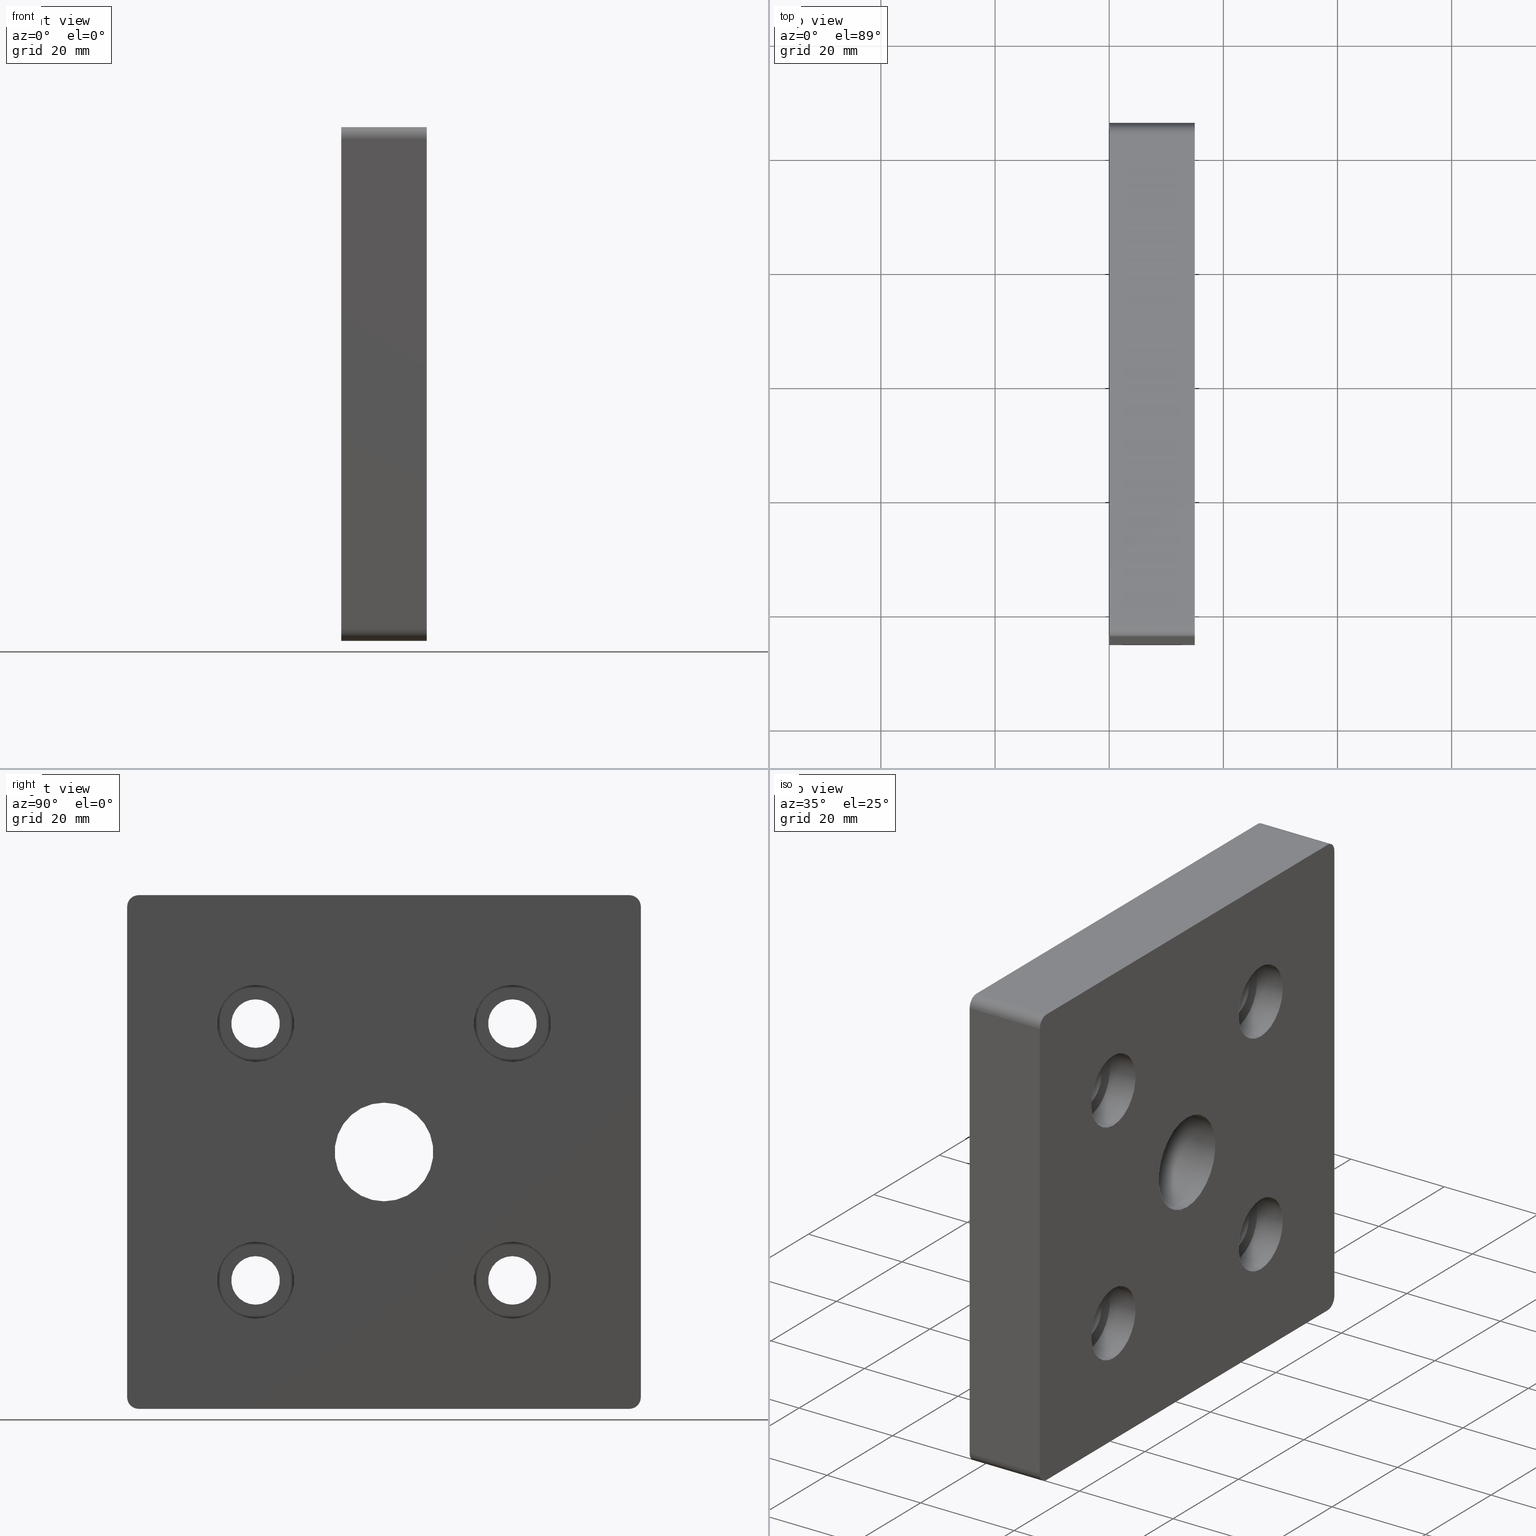
[diagram: canonical four-view strip — front | top / right | iso, engineering-drawing reading convention]
A machine part, canonical four-view strip (front | top / right | iso — engineering-drawing reading convention). The complete STEP part file that produces these views, byte-faithful:
ISO-10303-21;
HEADER;
/* Generated by software containing ST-Developer
 * from STEP Tools, Inc. (www.steptools.com) 
 */

FILE_DESCRIPTION(
/* description */ ('PIASTRA FISS. PIEDI M20 90X90'),
/* implementation_level */ '2;1');

FILE_NAME(
/* name */ 
'Q:\\Catalogo\\2_Accessori Dierre\\Per Download Web e catalogo cartace
o\\CATALOGO PIEDI E SOSTEGNI\\PAGINA 46\\DPSXX0000558.stp',
/* time_stamp */ '2018-11-05T17:31:01+01:00',
/* author */ ('fzagni'),
/* organization */ (''),
/* preprocessor_version */ 'ST-DEVELOPER v16.1',
/* originating_system */ 'Autodesk Inventor 2016',
/* authorisation */ '');

FILE_SCHEMA (('AUTOMOTIVE_DESIGN { 1 0 10303 214 3 1 1 }'));
ENDSEC;

DATA;
#10=MECHANICAL_DESIGN_GEOMETRIC_PRESENTATION_REPRESENTATION('',(#13),#641);
#11=SHAPE_REPRESENTATION_RELATIONSHIP('SRR','None',#650,#12);
#12=ADVANCED_BREP_SHAPE_REPRESENTATION('',(#14),#640);
#13=STYLED_ITEM('',(#659),#14);
#14=MANIFOLD_SOLID_BREP('Solido1',#371);
#15=FACE_BOUND('',#74,.T.);
#16=FACE_BOUND('',#75,.T.);
#17=FACE_BOUND('',#76,.T.);
#18=FACE_BOUND('',#77,.T.);
#19=FACE_BOUND('',#78,.T.);
#20=FACE_BOUND('',#85,.T.);
#21=FACE_BOUND('',#87,.T.);
#22=FACE_BOUND('',#89,.T.);
#23=FACE_BOUND('',#91,.T.);
#24=FACE_BOUND('',#93,.T.);
#25=FACE_BOUND('',#95,.T.);
#26=FACE_BOUND('',#97,.T.);
#27=FACE_BOUND('',#99,.T.);
#28=FACE_BOUND('',#101,.T.);
#29=FACE_BOUND('',#103,.T.);
#30=FACE_BOUND('',#105,.T.);
#31=FACE_BOUND('',#107,.T.);
#32=FACE_BOUND('',#109,.T.);
#33=FACE_BOUND('',#112,.T.);
#34=FACE_BOUND('',#113,.T.);
#35=FACE_BOUND('',#114,.T.);
#36=FACE_BOUND('',#115,.T.);
#37=FACE_BOUND('',#116,.T.);
#38=PLANE('',#376);
#39=PLANE('',#377);
#40=PLANE('',#388);
#41=PLANE('',#391);
#42=PLANE('',#396);
#43=PLANE('',#402);
#44=PLANE('',#408);
#45=PLANE('',#414);
#46=PLANE('',#420);
#47=PLANE('',#421);
#48=FACE_OUTER_BOUND('',#71,.T.);
#49=FACE_OUTER_BOUND('',#72,.T.);
#50=FACE_OUTER_BOUND('',#73,.T.);
#51=FACE_OUTER_BOUND('',#79,.T.);
#52=FACE_OUTER_BOUND('',#80,.T.);
#53=FACE_OUTER_BOUND('',#81,.T.);
#54=FACE_OUTER_BOUND('',#82,.T.);
#55=FACE_OUTER_BOUND('',#83,.T.);
#56=FACE_OUTER_BOUND('',#84,.T.);
#57=FACE_OUTER_BOUND('',#86,.T.);
#58=FACE_OUTER_BOUND('',#88,.T.);
#59=FACE_OUTER_BOUND('',#90,.T.);
#60=FACE_OUTER_BOUND('',#92,.T.);
#61=FACE_OUTER_BOUND('',#94,.T.);
#62=FACE_OUTER_BOUND('',#96,.T.);
#63=FACE_OUTER_BOUND('',#98,.T.);
#64=FACE_OUTER_BOUND('',#100,.T.);
#65=FACE_OUTER_BOUND('',#102,.T.);
#66=FACE_OUTER_BOUND('',#104,.T.);
#67=FACE_OUTER_BOUND('',#106,.T.);
#68=FACE_OUTER_BOUND('',#108,.T.);
#69=FACE_OUTER_BOUND('',#110,.T.);
#70=FACE_OUTER_BOUND('',#111,.T.);
#71=EDGE_LOOP('',(#251,#252,#253,#254));
#72=EDGE_LOOP('',(#255,#256,#257,#258));
#73=EDGE_LOOP('',(#259,#260,#261,#262,#263,#264,#265,#266));
#74=EDGE_LOOP('',(#267));
#75=EDGE_LOOP('',(#268));
#76=EDGE_LOOP('',(#269));
#77=EDGE_LOOP('',(#270));
#78=EDGE_LOOP('',(#271));
#79=EDGE_LOOP('',(#272,#273,#274,#275));
#80=EDGE_LOOP('',(#276,#277,#278,#279));
#81=EDGE_LOOP('',(#280,#281,#282,#283));
#82=EDGE_LOOP('',(#284,#285,#286,#287));
#83=EDGE_LOOP('',(#288,#289,#290,#291));
#84=EDGE_LOOP('',(#292));
#85=EDGE_LOOP('',(#293));
#86=EDGE_LOOP('',(#294));
#87=EDGE_LOOP('',(#295));
#88=EDGE_LOOP('',(#296));
#89=EDGE_LOOP('',(#297));
#90=EDGE_LOOP('',(#298));
#91=EDGE_LOOP('',(#299));
#92=EDGE_LOOP('',(#300));
#93=EDGE_LOOP('',(#301));
#94=EDGE_LOOP('',(#302));
#95=EDGE_LOOP('',(#303));
#96=EDGE_LOOP('',(#304));
#97=EDGE_LOOP('',(#305));
#98=EDGE_LOOP('',(#306));
#99=EDGE_LOOP('',(#307));
#100=EDGE_LOOP('',(#308));
#101=EDGE_LOOP('',(#309));
#102=EDGE_LOOP('',(#310));
#103=EDGE_LOOP('',(#311));
#104=EDGE_LOOP('',(#312));
#105=EDGE_LOOP('',(#313));
#106=EDGE_LOOP('',(#314));
#107=EDGE_LOOP('',(#315));
#108=EDGE_LOOP('',(#316));
#109=EDGE_LOOP('',(#317));
#110=EDGE_LOOP('',(#318,#319,#320,#321));
#111=EDGE_LOOP('',(#322,#323,#324,#325,#326,#327,#328,#329));
#112=EDGE_LOOP('',(#330));
#113=EDGE_LOOP('',(#331));
#114=EDGE_LOOP('',(#332));
#115=EDGE_LOOP('',(#333));
#116=EDGE_LOOP('',(#334));
#117=LINE('',#544,#133);
#118=LINE('',#547,#134);
#119=LINE('',#550,#135);
#120=LINE('',#552,#136);
#121=LINE('',#553,#137);
#122=LINE('',#556,#138);
#123=LINE('',#560,#139);
#124=LINE('',#564,#140);
#125=LINE('',#579,#141);
#126=LINE('',#582,#142);
#127=LINE('',#583,#143);
#128=LINE('',#587,#144);
#129=LINE('',#590,#145);
#130=LINE('',#591,#146);
#131=LINE('',#595,#147);
#132=LINE('',#636,#148);
#133=VECTOR('',#428,15.);
#134=VECTOR('',#431,15.);
#135=VECTOR('',#434,86.);
#136=VECTOR('',#435,15.);
#137=VECTOR('',#436,86.);
#138=VECTOR('',#439,86.);
#139=VECTOR('',#442,86.);
#140=VECTOR('',#445,86.);
#141=VECTOR('',#462,15.);
#142=VECTOR('',#465,15.);
#143=VECTOR('',#466,86.);
#144=VECTOR('',#471,15.);
#145=VECTOR('',#474,15.);
#146=VECTOR('',#475,86.);
#147=VECTOR('',#480,15.);
#148=VECTOR('',#535,86.);
#149=CIRCLE('',#374,2.);
#150=CIRCLE('',#375,2.);
#151=CIRCLE('',#378,2.);
#152=CIRCLE('',#379,2.);
#153=CIRCLE('',#380,2.);
#154=CIRCLE('',#381,8.647);
#155=CIRCLE('',#382,4.25);
#156=CIRCLE('',#383,4.25);
#157=CIRCLE('',#384,4.25);
#158=CIRCLE('',#385,4.25);
#159=CIRCLE('',#387,2.);
#160=CIRCLE('',#390,2.);
#161=CIRCLE('',#393,2.);
#162=CIRCLE('',#395,8.647);
#163=CIRCLE('',#397,6.75);
#164=CIRCLE('',#398,4.25);
#165=CIRCLE('',#400,6.75);
#166=CIRCLE('',#403,6.75);
#167=CIRCLE('',#404,4.25);
#168=CIRCLE('',#406,6.75);
#169=CIRCLE('',#409,6.75);
#170=CIRCLE('',#410,4.25);
#171=CIRCLE('',#412,6.75);
#172=CIRCLE('',#415,6.75);
#173=CIRCLE('',#416,4.25);
#174=CIRCLE('',#418,6.75);
#175=VERTEX_POINT('',#540);
#176=VERTEX_POINT('',#541);
#177=VERTEX_POINT('',#543);
#178=VERTEX_POINT('',#545);
#179=VERTEX_POINT('',#549);
#180=VERTEX_POINT('',#551);
#181=VERTEX_POINT('',#555);
#182=VERTEX_POINT('',#557);
#183=VERTEX_POINT('',#559);
#184=VERTEX_POINT('',#561);
#185=VERTEX_POINT('',#563);
#186=VERTEX_POINT('',#566);
#187=VERTEX_POINT('',#568);
#188=VERTEX_POINT('',#570);
#189=VERTEX_POINT('',#572);
#190=VERTEX_POINT('',#574);
#191=VERTEX_POINT('',#577);
#192=VERTEX_POINT('',#581);
#193=VERTEX_POINT('',#585);
#194=VERTEX_POINT('',#589);
#195=VERTEX_POINT('',#593);
#196=VERTEX_POINT('',#597);
#197=VERTEX_POINT('',#600);
#198=VERTEX_POINT('',#602);
#199=VERTEX_POINT('',#605);
#200=VERTEX_POINT('',#609);
#201=VERTEX_POINT('',#611);
#202=VERTEX_POINT('',#614);
#203=VERTEX_POINT('',#618);
#204=VERTEX_POINT('',#620);
#205=VERTEX_POINT('',#623);
#206=VERTEX_POINT('',#627);
#207=VERTEX_POINT('',#629);
#208=VERTEX_POINT('',#632);
#209=EDGE_CURVE('',#175,#176,#149,.T.);
#210=EDGE_CURVE('',#176,#177,#117,.T.);
#211=EDGE_CURVE('',#177,#178,#150,.T.);
#212=EDGE_CURVE('',#178,#175,#118,.T.);
#213=EDGE_CURVE('',#178,#179,#119,.T.);
#214=EDGE_CURVE('',#180,#179,#120,.T.);
#215=EDGE_CURVE('',#175,#180,#121,.T.);
#216=EDGE_CURVE('',#181,#177,#122,.T.);
#217=EDGE_CURVE('',#182,#181,#151,.T.);
#218=EDGE_CURVE('',#183,#182,#123,.T.);
#219=EDGE_CURVE('',#184,#183,#152,.T.);
#220=EDGE_CURVE('',#185,#184,#124,.T.);
#221=EDGE_CURVE('',#179,#185,#153,.T.);
#222=EDGE_CURVE('',#186,#186,#154,.T.);
#223=EDGE_CURVE('',#187,#187,#155,.T.);
#224=EDGE_CURVE('',#188,#188,#156,.T.);
#225=EDGE_CURVE('',#189,#189,#157,.T.);
#226=EDGE_CURVE('',#190,#190,#158,.T.);
#227=EDGE_CURVE('',#191,#180,#159,.T.);
#228=EDGE_CURVE('',#185,#191,#125,.T.);
#229=EDGE_CURVE('',#192,#184,#126,.T.);
#230=EDGE_CURVE('',#191,#192,#127,.T.);
#231=EDGE_CURVE('',#193,#192,#160,.T.);
#232=EDGE_CURVE('',#183,#193,#128,.T.);
#233=EDGE_CURVE('',#194,#182,#129,.T.);
#234=EDGE_CURVE('',#193,#194,#130,.T.);
#235=EDGE_CURVE('',#195,#194,#161,.T.);
#236=EDGE_CURVE('',#181,#195,#131,.T.);
#237=EDGE_CURVE('',#196,#196,#162,.T.);
#238=EDGE_CURVE('',#197,#197,#163,.T.);
#239=EDGE_CURVE('',#198,#198,#164,.T.);
#240=EDGE_CURVE('',#199,#199,#165,.T.);
#241=EDGE_CURVE('',#200,#200,#166,.T.);
#242=EDGE_CURVE('',#201,#201,#167,.T.);
#243=EDGE_CURVE('',#202,#202,#168,.T.);
#244=EDGE_CURVE('',#203,#203,#169,.T.);
#245=EDGE_CURVE('',#204,#204,#170,.T.);
#246=EDGE_CURVE('',#205,#205,#171,.T.);
#247=EDGE_CURVE('',#206,#206,#172,.T.);
#248=EDGE_CURVE('',#207,#207,#173,.T.);
#249=EDGE_CURVE('',#208,#208,#174,.T.);
#250=EDGE_CURVE('',#195,#176,#132,.T.);
#251=ORIENTED_EDGE('',*,*,#209,.T.);
#252=ORIENTED_EDGE('',*,*,#210,.T.);
#253=ORIENTED_EDGE('',*,*,#211,.T.);
#254=ORIENTED_EDGE('',*,*,#212,.T.);
#255=ORIENTED_EDGE('',*,*,#212,.F.);
#256=ORIENTED_EDGE('',*,*,#213,.T.);
#257=ORIENTED_EDGE('',*,*,#214,.F.);
#258=ORIENTED_EDGE('',*,*,#215,.F.);
#259=ORIENTED_EDGE('',*,*,#211,.F.);
#260=ORIENTED_EDGE('',*,*,#216,.F.);
#261=ORIENTED_EDGE('',*,*,#217,.F.);
#262=ORIENTED_EDGE('',*,*,#218,.F.);
#263=ORIENTED_EDGE('',*,*,#219,.F.);
#264=ORIENTED_EDGE('',*,*,#220,.F.);
#265=ORIENTED_EDGE('',*,*,#221,.F.);
#266=ORIENTED_EDGE('',*,*,#213,.F.);
#267=ORIENTED_EDGE('',*,*,#222,.T.);
#268=ORIENTED_EDGE('',*,*,#223,.T.);
#269=ORIENTED_EDGE('',*,*,#224,.T.);
#270=ORIENTED_EDGE('',*,*,#225,.T.);
#271=ORIENTED_EDGE('',*,*,#226,.T.);
#272=ORIENTED_EDGE('',*,*,#227,.T.);
#273=ORIENTED_EDGE('',*,*,#214,.T.);
#274=ORIENTED_EDGE('',*,*,#221,.T.);
#275=ORIENTED_EDGE('',*,*,#228,.T.);
#276=ORIENTED_EDGE('',*,*,#228,.F.);
#277=ORIENTED_EDGE('',*,*,#220,.T.);
#278=ORIENTED_EDGE('',*,*,#229,.F.);
#279=ORIENTED_EDGE('',*,*,#230,.F.);
#280=ORIENTED_EDGE('',*,*,#231,.T.);
#281=ORIENTED_EDGE('',*,*,#229,.T.);
#282=ORIENTED_EDGE('',*,*,#219,.T.);
#283=ORIENTED_EDGE('',*,*,#232,.T.);
#284=ORIENTED_EDGE('',*,*,#232,.F.);
#285=ORIENTED_EDGE('',*,*,#218,.T.);
#286=ORIENTED_EDGE('',*,*,#233,.F.);
#287=ORIENTED_EDGE('',*,*,#234,.F.);
#288=ORIENTED_EDGE('',*,*,#235,.T.);
#289=ORIENTED_EDGE('',*,*,#233,.T.);
#290=ORIENTED_EDGE('',*,*,#217,.T.);
#291=ORIENTED_EDGE('',*,*,#236,.T.);
#292=ORIENTED_EDGE('',*,*,#222,.F.);
#293=ORIENTED_EDGE('',*,*,#237,.F.);
#294=ORIENTED_EDGE('',*,*,#238,.T.);
#295=ORIENTED_EDGE('',*,*,#239,.F.);
#296=ORIENTED_EDGE('',*,*,#240,.F.);
#297=ORIENTED_EDGE('',*,*,#238,.F.);
#298=ORIENTED_EDGE('',*,*,#223,.F.);
#299=ORIENTED_EDGE('',*,*,#239,.T.);
#300=ORIENTED_EDGE('',*,*,#241,.T.);
#301=ORIENTED_EDGE('',*,*,#242,.F.);
#302=ORIENTED_EDGE('',*,*,#243,.F.);
#303=ORIENTED_EDGE('',*,*,#241,.F.);
#304=ORIENTED_EDGE('',*,*,#224,.F.);
#305=ORIENTED_EDGE('',*,*,#242,.T.);
#306=ORIENTED_EDGE('',*,*,#244,.T.);
#307=ORIENTED_EDGE('',*,*,#245,.F.);
#308=ORIENTED_EDGE('',*,*,#246,.F.);
#309=ORIENTED_EDGE('',*,*,#244,.F.);
#310=ORIENTED_EDGE('',*,*,#225,.F.);
#311=ORIENTED_EDGE('',*,*,#245,.T.);
#312=ORIENTED_EDGE('',*,*,#247,.T.);
#313=ORIENTED_EDGE('',*,*,#248,.F.);
#314=ORIENTED_EDGE('',*,*,#249,.F.);
#315=ORIENTED_EDGE('',*,*,#247,.F.);
#316=ORIENTED_EDGE('',*,*,#226,.F.);
#317=ORIENTED_EDGE('',*,*,#248,.T.);
#318=ORIENTED_EDGE('',*,*,#210,.F.);
#319=ORIENTED_EDGE('',*,*,#250,.F.);
#320=ORIENTED_EDGE('',*,*,#236,.F.);
#321=ORIENTED_EDGE('',*,*,#216,.T.);
#322=ORIENTED_EDGE('',*,*,#209,.F.);
#323=ORIENTED_EDGE('',*,*,#215,.T.);
#324=ORIENTED_EDGE('',*,*,#227,.F.);
#325=ORIENTED_EDGE('',*,*,#230,.T.);
#326=ORIENTED_EDGE('',*,*,#231,.F.);
#327=ORIENTED_EDGE('',*,*,#234,.T.);
#328=ORIENTED_EDGE('',*,*,#235,.F.);
#329=ORIENTED_EDGE('',*,*,#250,.T.);
#330=ORIENTED_EDGE('',*,*,#237,.T.);
#331=ORIENTED_EDGE('',*,*,#240,.T.);
#332=ORIENTED_EDGE('',*,*,#243,.T.);
#333=ORIENTED_EDGE('',*,*,#246,.T.);
#334=ORIENTED_EDGE('',*,*,#249,.T.);
#335=CYLINDRICAL_SURFACE('',#373,2.);
#336=CYLINDRICAL_SURFACE('',#386,2.);
#337=CYLINDRICAL_SURFACE('',#389,2.);
#338=CYLINDRICAL_SURFACE('',#392,2.);
#339=CYLINDRICAL_SURFACE('',#394,8.647);
#340=CYLINDRICAL_SURFACE('',#399,6.75);
#341=CYLINDRICAL_SURFACE('',#401,4.25);
#342=CYLINDRICAL_SURFACE('',#405,6.75);
#343=CYLINDRICAL_SURFACE('',#407,4.25);
#344=CYLINDRICAL_SURFACE('',#411,6.75);
#345=CYLINDRICAL_SURFACE('',#413,4.25);
#346=CYLINDRICAL_SURFACE('',#417,6.75);
#347=CYLINDRICAL_SURFACE('',#419,4.25);
#348=ADVANCED_FACE('',(#48),#335,.T.);
#349=ADVANCED_FACE('',(#49),#38,.T.);
#350=ADVANCED_FACE('',(#50,#15,#16,#17,#18,#19),#39,.F.);
#351=ADVANCED_FACE('',(#51),#336,.T.);
#352=ADVANCED_FACE('',(#52),#40,.T.);
#353=ADVANCED_FACE('',(#53),#337,.T.);
#354=ADVANCED_FACE('',(#54),#41,.T.);
#355=ADVANCED_FACE('',(#55),#338,.T.);
#356=ADVANCED_FACE('',(#56,#20),#339,.F.);
#357=ADVANCED_FACE('',(#57,#21),#42,.T.);
#358=ADVANCED_FACE('',(#58,#22),#340,.F.);
#359=ADVANCED_FACE('',(#59,#23),#341,.F.);
#360=ADVANCED_FACE('',(#60,#24),#43,.T.);
#361=ADVANCED_FACE('',(#61,#25),#342,.F.);
#362=ADVANCED_FACE('',(#62,#26),#343,.F.);
#363=ADVANCED_FACE('',(#63,#27),#44,.T.);
#364=ADVANCED_FACE('',(#64,#28),#344,.F.);
#365=ADVANCED_FACE('',(#65,#29),#345,.F.);
#366=ADVANCED_FACE('',(#66,#30),#45,.T.);
#367=ADVANCED_FACE('',(#67,#31),#346,.F.);
#368=ADVANCED_FACE('',(#68,#32),#347,.F.);
#369=ADVANCED_FACE('',(#69),#46,.T.);
#370=ADVANCED_FACE('',(#70,#33,#34,#35,#36,#37),#47,.T.);
#371=CLOSED_SHELL('',(#348,#349,#350,#351,#352,#353,#354,#355,#356,#357,
#358,#359,#360,#361,#362,#363,#364,#365,#366,#367,#368,#369,#370));
#372=AXIS2_PLACEMENT_3D('placement',#538,#422,#423);
#373=AXIS2_PLACEMENT_3D('',#539,#424,#425);
#374=AXIS2_PLACEMENT_3D('',#542,#426,#427);
#375=AXIS2_PLACEMENT_3D('',#546,#429,#430);
#376=AXIS2_PLACEMENT_3D('',#548,#432,#433);
#377=AXIS2_PLACEMENT_3D('',#554,#437,#438);
#378=AXIS2_PLACEMENT_3D('',#558,#440,#441);
#379=AXIS2_PLACEMENT_3D('',#562,#443,#444);
#380=AXIS2_PLACEMENT_3D('',#565,#446,#447);
#381=AXIS2_PLACEMENT_3D('',#567,#448,#449);
#382=AXIS2_PLACEMENT_3D('',#569,#450,#451);
#383=AXIS2_PLACEMENT_3D('',#571,#452,#453);
#384=AXIS2_PLACEMENT_3D('',#573,#454,#455);
#385=AXIS2_PLACEMENT_3D('',#575,#456,#457);
#386=AXIS2_PLACEMENT_3D('',#576,#458,#459);
#387=AXIS2_PLACEMENT_3D('',#578,#460,#461);
#388=AXIS2_PLACEMENT_3D('',#580,#463,#464);
#389=AXIS2_PLACEMENT_3D('',#584,#467,#468);
#390=AXIS2_PLACEMENT_3D('',#586,#469,#470);
#391=AXIS2_PLACEMENT_3D('',#588,#472,#473);
#392=AXIS2_PLACEMENT_3D('',#592,#476,#477);
#393=AXIS2_PLACEMENT_3D('',#594,#478,#479);
#394=AXIS2_PLACEMENT_3D('',#596,#481,#482);
#395=AXIS2_PLACEMENT_3D('',#598,#483,#484);
#396=AXIS2_PLACEMENT_3D('',#599,#485,#486);
#397=AXIS2_PLACEMENT_3D('',#601,#487,#488);
#398=AXIS2_PLACEMENT_3D('',#603,#489,#490);
#399=AXIS2_PLACEMENT_3D('',#604,#491,#492);
#400=AXIS2_PLACEMENT_3D('',#606,#493,#494);
#401=AXIS2_PLACEMENT_3D('',#607,#495,#496);
#402=AXIS2_PLACEMENT_3D('',#608,#497,#498);
#403=AXIS2_PLACEMENT_3D('',#610,#499,#500);
#404=AXIS2_PLACEMENT_3D('',#612,#501,#502);
#405=AXIS2_PLACEMENT_3D('',#613,#503,#504);
#406=AXIS2_PLACEMENT_3D('',#615,#505,#506);
#407=AXIS2_PLACEMENT_3D('',#616,#507,#508);
#408=AXIS2_PLACEMENT_3D('',#617,#509,#510);
#409=AXIS2_PLACEMENT_3D('',#619,#511,#512);
#410=AXIS2_PLACEMENT_3D('',#621,#513,#514);
#411=AXIS2_PLACEMENT_3D('',#622,#515,#516);
#412=AXIS2_PLACEMENT_3D('',#624,#517,#518);
#413=AXIS2_PLACEMENT_3D('',#625,#519,#520);
#414=AXIS2_PLACEMENT_3D('',#626,#521,#522);
#415=AXIS2_PLACEMENT_3D('',#628,#523,#524);
#416=AXIS2_PLACEMENT_3D('',#630,#525,#526);
#417=AXIS2_PLACEMENT_3D('',#631,#527,#528);
#418=AXIS2_PLACEMENT_3D('',#633,#529,#530);
#419=AXIS2_PLACEMENT_3D('',#634,#531,#532);
#420=AXIS2_PLACEMENT_3D('',#635,#533,#534);
#421=AXIS2_PLACEMENT_3D('',#637,#536,#537);
#422=DIRECTION('axis',(0.,0.,1.));
#423=DIRECTION('refdir',(1.,0.,0.));
#424=DIRECTION('center_axis',(1.,0.,0.));
#425=DIRECTION('ref_axis',(0.,-0.707106781186548,0.707106781186548));
#426=DIRECTION('center_axis',(-1.,0.,0.));
#427=DIRECTION('ref_axis',(0.,-0.707106781186548,0.707106781186548));
#428=DIRECTION('',(-1.,0.,0.));
#429=DIRECTION('center_axis',(1.,0.,0.));
#430=DIRECTION('ref_axis',(0.,-0.707106781186548,0.707106781186548));
#431=DIRECTION('',(1.,0.,0.));
#432=DIRECTION('center_axis',(0.,-1.,0.));
#433=DIRECTION('ref_axis',(0.,0.,-1.));
#434=DIRECTION('',(0.,0.,-1.));
#435=DIRECTION('',(-1.,0.,0.));
#436=DIRECTION('',(0.,0.,-1.));
#437=DIRECTION('center_axis',(1.,0.,0.));
#438=DIRECTION('ref_axis',(0.,0.,-1.));
#439=DIRECTION('',(0.,-1.,0.));
#440=DIRECTION('center_axis',(1.,0.,0.));
#441=DIRECTION('ref_axis',(0.,0.707106781186548,0.707106781186548));
#442=DIRECTION('',(0.,0.,1.));
#443=DIRECTION('center_axis',(1.,0.,0.));
#444=DIRECTION('ref_axis',(0.,0.707106781186548,-0.707106781186548));
#445=DIRECTION('',(0.,1.,0.));
#446=DIRECTION('center_axis',(1.,0.,0.));
#447=DIRECTION('ref_axis',(0.,-0.707106781186548,-0.707106781186548));
#448=DIRECTION('center_axis',(1.,0.,0.));
#449=DIRECTION('ref_axis',(0.,0.,-1.));
#450=DIRECTION('center_axis',(1.,0.,0.));
#451=DIRECTION('ref_axis',(0.,0.,-1.));
#452=DIRECTION('center_axis',(1.,0.,0.));
#453=DIRECTION('ref_axis',(0.,0.,-1.));
#454=DIRECTION('center_axis',(1.,0.,0.));
#455=DIRECTION('ref_axis',(0.,0.,-1.));
#456=DIRECTION('center_axis',(1.,0.,0.));
#457=DIRECTION('ref_axis',(0.,0.,-1.));
#458=DIRECTION('center_axis',(1.,0.,0.));
#459=DIRECTION('ref_axis',(0.,-0.707106781186548,-0.707106781186548));
#460=DIRECTION('center_axis',(-1.,0.,0.));
#461=DIRECTION('ref_axis',(0.,-0.707106781186548,-0.707106781186548));
#462=DIRECTION('',(1.,0.,0.));
#463=DIRECTION('center_axis',(0.,0.,-1.));
#464=DIRECTION('ref_axis',(0.,1.,0.));
#465=DIRECTION('',(-1.,0.,0.));
#466=DIRECTION('',(0.,1.,0.));
#467=DIRECTION('center_axis',(1.,0.,0.));
#468=DIRECTION('ref_axis',(0.,0.707106781186548,-0.707106781186548));
#469=DIRECTION('center_axis',(-1.,0.,0.));
#470=DIRECTION('ref_axis',(0.,0.707106781186548,-0.707106781186548));
#471=DIRECTION('',(1.,0.,0.));
#472=DIRECTION('center_axis',(0.,1.,0.));
#473=DIRECTION('ref_axis',(0.,0.,1.));
#474=DIRECTION('',(-1.,0.,0.));
#475=DIRECTION('',(0.,0.,1.));
#476=DIRECTION('center_axis',(1.,0.,0.));
#477=DIRECTION('ref_axis',(0.,0.707106781186548,0.707106781186548));
#478=DIRECTION('center_axis',(-1.,0.,0.));
#479=DIRECTION('ref_axis',(0.,0.707106781186548,0.707106781186548));
#480=DIRECTION('',(1.,0.,0.));
#481=DIRECTION('center_axis',(1.,0.,0.));
#482=DIRECTION('ref_axis',(0.,0.,-1.));
#483=DIRECTION('center_axis',(-1.,0.,0.));
#484=DIRECTION('ref_axis',(0.,0.,-1.));
#485=DIRECTION('center_axis',(1.,0.,0.));
#486=DIRECTION('ref_axis',(0.,0.,-1.));
#487=DIRECTION('center_axis',(1.,0.,0.));
#488=DIRECTION('ref_axis',(0.,0.,-1.));
#489=DIRECTION('center_axis',(1.,0.,0.));
#490=DIRECTION('ref_axis',(0.,0.,-1.));
#491=DIRECTION('center_axis',(1.,0.,0.));
#492=DIRECTION('ref_axis',(0.,0.,-1.));
#493=DIRECTION('center_axis',(-1.,0.,0.));
#494=DIRECTION('ref_axis',(0.,0.,-1.));
#495=DIRECTION('center_axis',(1.,0.,0.));
#496=DIRECTION('ref_axis',(0.,0.,-1.));
#497=DIRECTION('center_axis',(1.,0.,0.));
#498=DIRECTION('ref_axis',(0.,0.,-1.));
#499=DIRECTION('center_axis',(1.,0.,0.));
#500=DIRECTION('ref_axis',(0.,0.,-1.));
#501=DIRECTION('center_axis',(1.,0.,0.));
#502=DIRECTION('ref_axis',(0.,0.,-1.));
#503=DIRECTION('center_axis',(1.,0.,0.));
#504=DIRECTION('ref_axis',(0.,0.,-1.));
#505=DIRECTION('center_axis',(-1.,0.,0.));
#506=DIRECTION('ref_axis',(0.,0.,-1.));
#507=DIRECTION('center_axis',(1.,0.,0.));
#508=DIRECTION('ref_axis',(0.,0.,-1.));
#509=DIRECTION('center_axis',(1.,0.,0.));
#510=DIRECTION('ref_axis',(0.,0.,-1.));
#511=DIRECTION('center_axis',(1.,0.,0.));
#512=DIRECTION('ref_axis',(0.,0.,-1.));
#513=DIRECTION('center_axis',(1.,0.,0.));
#514=DIRECTION('ref_axis',(0.,0.,-1.));
#515=DIRECTION('center_axis',(1.,0.,0.));
#516=DIRECTION('ref_axis',(0.,0.,-1.));
#517=DIRECTION('center_axis',(-1.,0.,0.));
#518=DIRECTION('ref_axis',(0.,0.,-1.));
#519=DIRECTION('center_axis',(1.,0.,0.));
#520=DIRECTION('ref_axis',(0.,0.,-1.));
#521=DIRECTION('center_axis',(1.,0.,0.));
#522=DIRECTION('ref_axis',(0.,0.,-1.));
#523=DIRECTION('center_axis',(1.,0.,0.));
#524=DIRECTION('ref_axis',(0.,0.,-1.));
#525=DIRECTION('center_axis',(1.,0.,0.));
#526=DIRECTION('ref_axis',(0.,0.,-1.));
#527=DIRECTION('center_axis',(1.,0.,0.));
#528=DIRECTION('ref_axis',(0.,0.,-1.));
#529=DIRECTION('center_axis',(-1.,0.,0.));
#530=DIRECTION('ref_axis',(0.,0.,-1.));
#531=DIRECTION('center_axis',(1.,0.,0.));
#532=DIRECTION('ref_axis',(0.,0.,-1.));
#533=DIRECTION('center_axis',(0.,0.,1.));
#534=DIRECTION('ref_axis',(0.,-1.,0.));
#535=DIRECTION('',(0.,-1.,0.));
#536=DIRECTION('center_axis',(1.,0.,0.));
#537=DIRECTION('ref_axis',(0.,0.,-1.));
#538=CARTESIAN_POINT('',(0.,0.,0.));
#539=CARTESIAN_POINT('Origin',(0.,-43.,43.));
#540=CARTESIAN_POINT('',(15.,-45.,43.));
#541=CARTESIAN_POINT('',(15.,-43.,45.));
#542=CARTESIAN_POINT('Origin',(15.,-43.,43.));
#543=CARTESIAN_POINT('',(0.,-43.,45.));
#544=CARTESIAN_POINT('',(0.,-43.,45.));
#545=CARTESIAN_POINT('',(0.,-45.,43.));
#546=CARTESIAN_POINT('Origin',(0.,-43.,43.));
#547=CARTESIAN_POINT('',(0.,-45.,43.));
#548=CARTESIAN_POINT('Origin',(0.,-45.,45.));
#549=CARTESIAN_POINT('',(0.,-45.,-43.));
#550=CARTESIAN_POINT('',(0.,-45.,45.));
#551=CARTESIAN_POINT('',(15.,-45.,-43.));
#552=CARTESIAN_POINT('',(0.,-45.,-43.));
#553=CARTESIAN_POINT('',(15.,-45.,45.));
#554=CARTESIAN_POINT('Origin',(0.,0.,0.));
#555=CARTESIAN_POINT('',(0.,43.,45.));
#556=CARTESIAN_POINT('',(0.,45.,45.));
#557=CARTESIAN_POINT('',(0.,45.,43.));
#558=CARTESIAN_POINT('Origin',(0.,43.,43.));
#559=CARTESIAN_POINT('',(0.,45.,-43.));
#560=CARTESIAN_POINT('',(0.,45.,-45.));
#561=CARTESIAN_POINT('',(0.,43.,-45.));
#562=CARTESIAN_POINT('Origin',(0.,43.,-43.));
#563=CARTESIAN_POINT('',(0.,-43.,-45.));
#564=CARTESIAN_POINT('',(0.,-45.,-45.));
#565=CARTESIAN_POINT('Origin',(0.,-43.,-43.));
#566=CARTESIAN_POINT('',(0.,-1.05895208722272E-15,8.647));
#567=CARTESIAN_POINT('Origin',(0.,0.,0.));
#568=CARTESIAN_POINT('',(0.,-22.5,-18.25));
#569=CARTESIAN_POINT('Origin',(0.,-22.5,-22.5));
#570=CARTESIAN_POINT('',(0.,22.5,26.75));
#571=CARTESIAN_POINT('Origin',(0.,22.5,22.5));
#572=CARTESIAN_POINT('',(0.,22.5,-18.25));
#573=CARTESIAN_POINT('Origin',(0.,22.5,-22.5));
#574=CARTESIAN_POINT('',(0.,-22.5,26.75));
#575=CARTESIAN_POINT('Origin',(0.,-22.5,22.5));
#576=CARTESIAN_POINT('Origin',(0.,-43.,-43.));
#577=CARTESIAN_POINT('',(15.,-43.,-45.));
#578=CARTESIAN_POINT('Origin',(15.,-43.,-43.));
#579=CARTESIAN_POINT('',(0.,-43.,-45.));
#580=CARTESIAN_POINT('Origin',(0.,-45.,-45.));
#581=CARTESIAN_POINT('',(15.,43.,-45.));
#582=CARTESIAN_POINT('',(0.,43.,-45.));
#583=CARTESIAN_POINT('',(15.,-45.,-45.));
#584=CARTESIAN_POINT('Origin',(0.,43.,-43.));
#585=CARTESIAN_POINT('',(15.,45.,-43.));
#586=CARTESIAN_POINT('Origin',(15.,43.,-43.));
#587=CARTESIAN_POINT('',(0.,45.,-43.));
#588=CARTESIAN_POINT('Origin',(0.,45.,-45.));
#589=CARTESIAN_POINT('',(15.,45.,43.));
#590=CARTESIAN_POINT('',(0.,45.,43.));
#591=CARTESIAN_POINT('',(15.,45.,-45.));
#592=CARTESIAN_POINT('Origin',(0.,43.,43.));
#593=CARTESIAN_POINT('',(15.,43.,45.));
#594=CARTESIAN_POINT('Origin',(15.,43.,43.));
#595=CARTESIAN_POINT('',(0.,43.,45.));
#596=CARTESIAN_POINT('Origin',(-113.160056179763,0.,0.));
#597=CARTESIAN_POINT('',(15.,0.,-8.647));
#598=CARTESIAN_POINT('Origin',(15.,0.,0.));
#599=CARTESIAN_POINT('Origin',(9.5,-22.5,-22.5));
#600=CARTESIAN_POINT('',(9.5,-22.5,-29.25));
#601=CARTESIAN_POINT('Origin',(9.5,-22.5,-22.5));
#602=CARTESIAN_POINT('',(9.49999999999999,-22.5,-18.25));
#603=CARTESIAN_POINT('Origin',(9.49999999999999,-22.5,-22.5));
#604=CARTESIAN_POINT('Origin',(12.25,-22.5,-22.5));
#605=CARTESIAN_POINT('',(15.,-22.5,-29.25));
#606=CARTESIAN_POINT('Origin',(15.,-22.5,-22.5));
#607=CARTESIAN_POINT('Origin',(-113.160056179763,-22.5,-22.5));
#608=CARTESIAN_POINT('Origin',(9.5,22.5,22.5));
#609=CARTESIAN_POINT('',(9.5,22.5,15.75));
#610=CARTESIAN_POINT('Origin',(9.5,22.5,22.5));
#611=CARTESIAN_POINT('',(9.49999999999999,22.5,26.75));
#612=CARTESIAN_POINT('Origin',(9.49999999999999,22.5,22.5));
#613=CARTESIAN_POINT('Origin',(12.25,22.5,22.5));
#614=CARTESIAN_POINT('',(15.,22.5,15.75));
#615=CARTESIAN_POINT('Origin',(15.,22.5,22.5));
#616=CARTESIAN_POINT('Origin',(-113.160056179763,22.5,22.5));
#617=CARTESIAN_POINT('Origin',(9.5,22.5,-22.5));
#618=CARTESIAN_POINT('',(9.5,22.5,-29.25));
#619=CARTESIAN_POINT('Origin',(9.5,22.5,-22.5));
#620=CARTESIAN_POINT('',(9.49999999999999,22.5,-18.25));
#621=CARTESIAN_POINT('Origin',(9.49999999999999,22.5,-22.5));
#622=CARTESIAN_POINT('Origin',(12.25,22.5,-22.5));
#623=CARTESIAN_POINT('',(15.,22.5,-29.25));
#624=CARTESIAN_POINT('Origin',(15.,22.5,-22.5));
#625=CARTESIAN_POINT('Origin',(-113.160056179763,22.5,-22.5));
#626=CARTESIAN_POINT('Origin',(9.5,-22.5,22.5));
#627=CARTESIAN_POINT('',(9.5,-22.5,15.75));
#628=CARTESIAN_POINT('Origin',(9.5,-22.5,22.5));
#629=CARTESIAN_POINT('',(9.49999999999999,-22.5,26.75));
#630=CARTESIAN_POINT('Origin',(9.49999999999999,-22.5,22.5));
#631=CARTESIAN_POINT('Origin',(12.25,-22.5,22.5));
#632=CARTESIAN_POINT('',(15.,-22.5,15.75));
#633=CARTESIAN_POINT('Origin',(15.,-22.5,22.5));
#634=CARTESIAN_POINT('Origin',(-113.160056179763,-22.5,22.5));
#635=CARTESIAN_POINT('Origin',(0.,45.,45.));
#636=CARTESIAN_POINT('',(15.,45.,45.));
#637=CARTESIAN_POINT('Origin',(15.,0.,0.));
#638=UNCERTAINTY_MEASURE_WITH_UNIT(LENGTH_MEASURE(0.01),#642,
'DISTANCE_ACCURACY_VALUE',
'Maximum model space distance between geometric entities at asserted c
onnectivities');
#639=UNCERTAINTY_MEASURE_WITH_UNIT(LENGTH_MEASURE(1.E-6),#642,
'DISTANCE_ACCURACY_VALUE',
'Maximum model space distance between geometric entities at asserted c
onnectivities');
#640=(
GEOMETRIC_REPRESENTATION_CONTEXT(3)
GLOBAL_UNCERTAINTY_ASSIGNED_CONTEXT((#638))
GLOBAL_UNIT_ASSIGNED_CONTEXT((#642,#645,#643))
REPRESENTATION_CONTEXT('','3D')
);
#641=(
GEOMETRIC_REPRESENTATION_CONTEXT(3)
GLOBAL_UNCERTAINTY_ASSIGNED_CONTEXT((#639))
GLOBAL_UNIT_ASSIGNED_CONTEXT((#642,#645,#643))
REPRESENTATION_CONTEXT('','3D')
);
#642=(
LENGTH_UNIT()
NAMED_UNIT(*)
SI_UNIT(.MILLI.,.METRE.)
);
#643=(
NAMED_UNIT(*)
SI_UNIT($,.STERADIAN.)
SOLID_ANGLE_UNIT()
);
#644=DIMENSIONAL_EXPONENTS(0.,0.,0.,0.,0.,0.,0.);
#645=(
CONVERSION_BASED_UNIT('degree',#647)
NAMED_UNIT(#644)
PLANE_ANGLE_UNIT()
);
#646=(
NAMED_UNIT(*)
PLANE_ANGLE_UNIT()
SI_UNIT($,.RADIAN.)
);
#647=PLANE_ANGLE_MEASURE_WITH_UNIT(PLANE_ANGLE_MEASURE(0.01745329252),#646);
#648=SHAPE_DEFINITION_REPRESENTATION(#649,#650);
#649=PRODUCT_DEFINITION_SHAPE('',$,#652);
#650=SHAPE_REPRESENTATION('',(#372),#640);
#651=PRODUCT_DEFINITION_CONTEXT('part definition',#656,'design');
#652=PRODUCT_DEFINITION('31.106.00','31.106.00',#653,#651);
#653=PRODUCT_DEFINITION_FORMATION('','A',#658);
#654=PRODUCT_RELATED_PRODUCT_CATEGORY('31.106.00','31.106.00',(#658));
#655=APPLICATION_PROTOCOL_DEFINITION('international standard',
'automotive_design',2009,#656);
#656=APPLICATION_CONTEXT(
'Core Data for Automotive Mechanical Design Process');
#657=PRODUCT_CONTEXT('part definition',#656,'mechanical');
#658=PRODUCT('31.106.00','31.106.00',$,(#657));
#659=PRESENTATION_STYLE_ASSIGNMENT((#660));
#660=SURFACE_STYLE_USAGE(.BOTH.,#661);
#661=SURFACE_SIDE_STYLE('',(#662));
#662=SURFACE_STYLE_FILL_AREA(#663);
#663=FILL_AREA_STYLE('',(#664));
#664=FILL_AREA_STYLE_COLOUR('',#665);
#665=COLOUR_RGB('',0.811764705882353,0.8,0.823529411764706);
ENDSEC;
END-ISO-10303-21;
